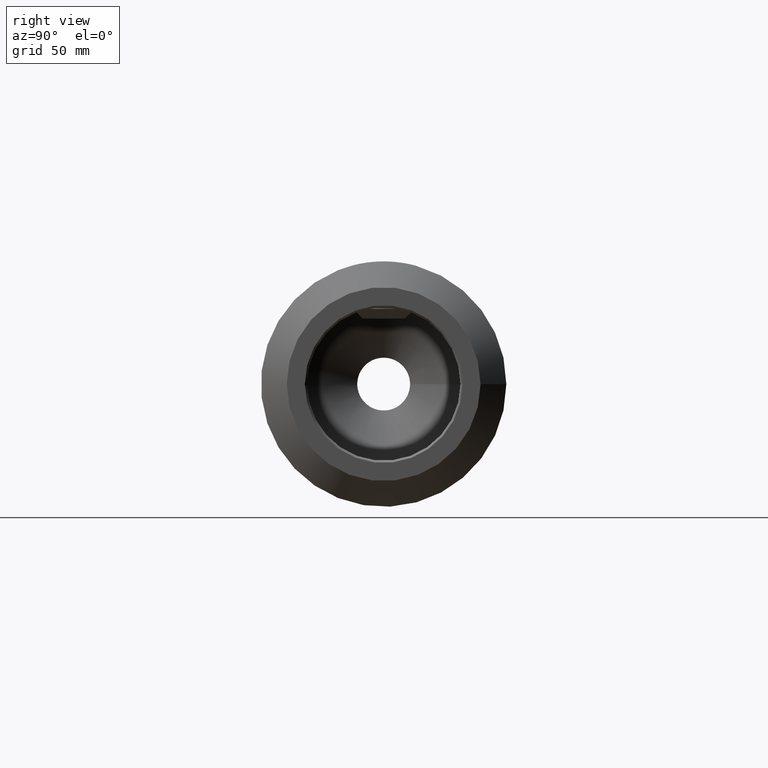
[diagram: clean part render]
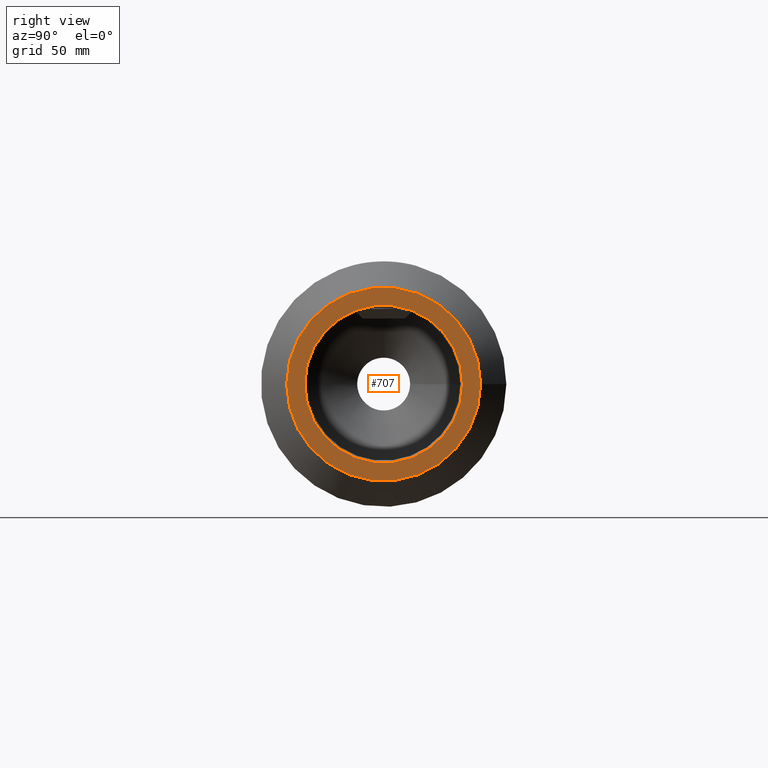
[diagram: same view with one face highlighted and labeled with its STEP entity id]
A machine part, right view. The second image highlights one B-rep face of the part: STEP entity #707.
In plain terms, the highlighted planar face has unit normal (1, 0, 0).
Its self-contained STEP definition (entity closure, byte-faithful):
#590=CARTESIAN_POINT('',(6.500000000000001,1.2845,0.0));
#591=VERTEX_POINT('',#590);
#592=CARTESIAN_POINT('',(6.500000000000001,0.0,0.0));
#593=DIRECTION('',(-1.0,0.0,0.0));
#594=DIRECTION('',(0.0,1.0,0.0));
#595=AXIS2_PLACEMENT_3D('',#592,#593,#594);
#596=CIRCLE('',#595,1.2845);
#597=EDGE_CURVE('',#591,#591,#596,.T.);
#681=CARTESIAN_POINT('',(6.500000000000001,1.580000000000001,0.0));
#682=VERTEX_POINT('',#681);
#683=CARTESIAN_POINT('',(6.500000000000001,0.0,0.0));
#684=DIRECTION('',(1.0,0.0,0.0));
#685=DIRECTION('',(0.0,1.0,0.0));
#686=AXIS2_PLACEMENT_3D('',#683,#684,#685);
#687=CIRCLE('',#686,1.580000000000001);
#688=EDGE_CURVE('',#682,#682,#687,.T.);
#696=CARTESIAN_POINT('',(6.500000000000001,0.79,0.0));
#697=DIRECTION('',(1.0,0.0,0.0));
#698=DIRECTION('',(0.0,0.0,-1.0));
#699=AXIS2_PLACEMENT_3D('',#696,#697,#698);
#700=PLANE('',#699);
#701=ORIENTED_EDGE('',*,*,#688,.T.);
#702=EDGE_LOOP('',(#701));
#703=FACE_OUTER_BOUND('',#702,.T.);
#704=ORIENTED_EDGE('',*,*,#597,.T.);
#705=EDGE_LOOP('',(#704));
#706=FACE_BOUND('',#705,.T.);
#707=ADVANCED_FACE('',(#703,#706),#700,.T.);